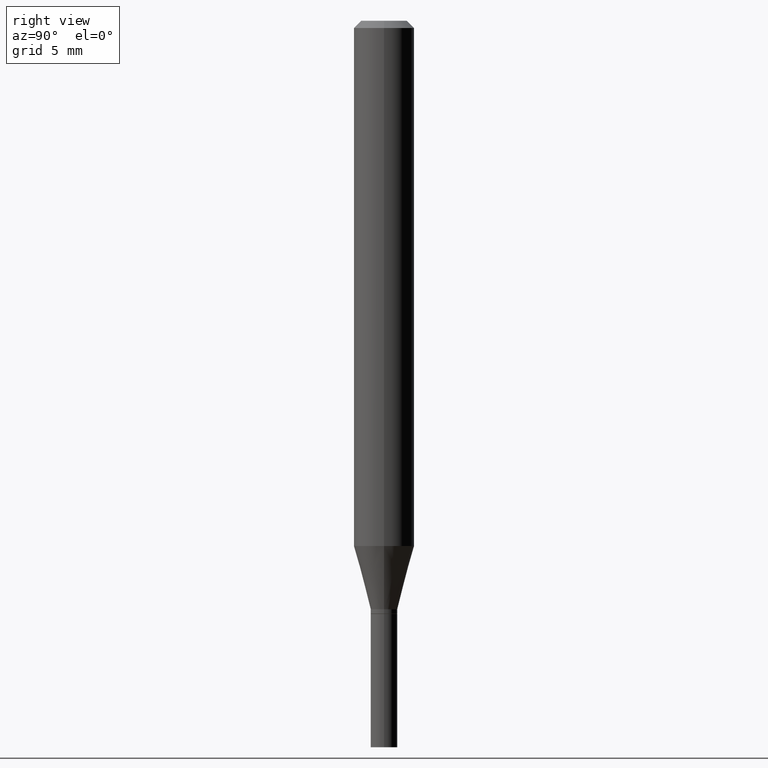
[diagram: clean part render]
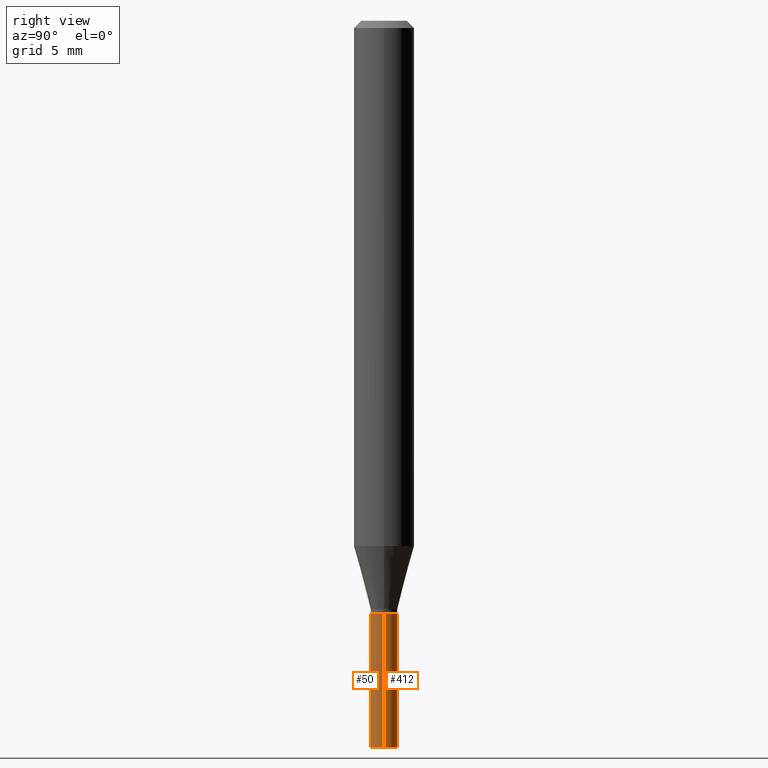
[diagram: same view with one multi-face feature highlighted, each face labeled with its STEP entity id]
A machine part, right view. The highlighted faces form ONE feature: a constant-radius fillet chain: 2 tangent blend faces with common blend radius 0.6985 mm. The faces share edges in the B-rep.
Their STEP definitions:
[1] entity #412 (Cylinder):
#14 = EDGE_LOOP ( 'NONE', ( #34, #220, #256, #105 ) ) ;
#20 = EDGE_CURVE ( 'NONE', #398, #40, #162, .T. ) ;
#24 = CARTESIAN_POINT ( 'NONE',  ( 0.02750000000000000014, -1.920314736363723444E-16, 1.340948613343882413E-30 ) ) ;
#32 = EDGE_CURVE ( 'NONE', #207, #244, #360, .T. ) ;
#34 = ORIENTED_EDGE ( 'NONE', *, *, #32, .T. ) ;
#40 = VERTEX_POINT ( 'NONE', #352 ) ;
#57 = DIRECTION ( 'NONE',  ( -2.445468806185136597E-29, 3.491481338843145583E-15, 1.000000000000000000 ) ) ;
#58 = AXIS2_PLACEMENT_3D ( 'NONE', #235, #310, #200 ) ;
#69 = EDGE_CURVE ( 'NONE', #207, #398, #453, .T. ) ;
#91 = FACE_OUTER_BOUND ( 'NONE', #14, .T. ) ;
#105 = ORIENTED_EDGE ( 'NONE', *, *, #69, .F. ) ;
#135 = VECTOR ( 'NONE', #455, 39.37007874015748143 ) ;
#161 = CARTESIAN_POINT ( 'NONE',  ( -0.02750000000000000014, 1.953992523340275521E-16, -1.352707149820099181E-30 ) ) ;
#162 = CIRCLE ( 'NONE', #353, 0.02750000000000000014 ) ;
#164 = DIRECTION ( 'NONE',  ( -2.445468806185136877E-29, 3.491481338843145188E-15, 1.000000000000000000 ) ) ;
#190 = AXIS2_PLACEMENT_3D ( 'NONE', #384, #57, #293 ) ;
#200 = DIRECTION ( 'NONE',  ( 1.000000000000000000, -6.982962677686279332E-15, 0.000000000000000000 ) ) ;
#207 = VERTEX_POINT ( 'NONE', #303 ) ;
#220 = ORIENTED_EDGE ( 'NONE', *, *, #356, .T. ) ;
#223 = CARTESIAN_POINT ( 'NONE',  ( -0.02750000000000000014, -4.561744071839757644E-15, -1.500000000000000222 ) ) ;
#234 = CYLINDRICAL_SURFACE ( 'NONE', #190, 0.02750000000000000014 ) ;
#235 = CARTESIAN_POINT ( 'NONE',  ( 3.668203209277704895E-29, -5.237222008264718177E-15, -1.500000000000000222 ) ) ;
#237 = CARTESIAN_POINT ( 'NONE',  ( 2.995699287576792443E-29, -4.277064640082853349E-15, -1.225000000000000089 ) ) ;
#244 = VERTEX_POINT ( 'NONE', #223 ) ;
#256 = ORIENTED_EDGE ( 'NONE', *, *, #20, .F. ) ;
#277 = DIRECTION ( 'NONE',  ( 1.000000000000000000, -6.982962677686262766E-15, 0.000000000000000000 ) ) ;
#293 = DIRECTION ( 'NONE',  ( 1.000000000000000000, -6.982962677686266711E-15, 4.876176775795935793E-29 ) ) ;
#303 = CARTESIAN_POINT ( 'NONE',  ( 0.02750000000000000014, -5.429253481901091458E-15, -1.500000000000000222 ) ) ;
#310 = DIRECTION ( 'NONE',  ( -2.445468806185136597E-29, 3.491481338843145583E-15, 1.000000000000000000 ) ) ;
#319 = VECTOR ( 'NONE', #164, 39.37007874015748143 ) ;
#352 = CARTESIAN_POINT ( 'NONE',  ( -0.02750000000000000014, -4.561744071839757644E-15, -1.225000000000000089 ) ) ;
#353 = AXIS2_PLACEMENT_3D ( 'NONE', #237, #456, #277 ) ;
#356 = EDGE_CURVE ( 'NONE', #244, #40, #421, .T. ) ;
#360 = CIRCLE ( 'NONE', #58, 0.02750000000000000014 ) ;
#384 = CARTESIAN_POINT ( 'NONE',  ( 0.000000000000000000, 0.000000000000000000, 0.000000000000000000 ) ) ;
#398 = VERTEX_POINT ( 'NONE', #419 ) ;
#412 = ADVANCED_FACE ( 'NONE', ( #91 ), #234, .T. ) ;
#419 = CARTESIAN_POINT ( 'NONE',  ( 0.02750000000000000014, -4.469096113719225841E-15, -1.225000000000000089 ) ) ;
#421 = LINE ( 'NONE', #161, #135 ) ;
#453 = LINE ( 'NONE', #24, #319 ) ;
#455 = DIRECTION ( 'NONE',  ( -2.445468806185136877E-29, 3.491481338843145188E-15, 1.000000000000000000 ) ) ;
#456 = DIRECTION ( 'NONE',  ( -2.445468806185136597E-29, 3.491481338843145583E-15, 1.000000000000000000 ) ) ;
[2] entity #50 (Cylinder):
#6 = ORIENTED_EDGE ( 'NONE', *, *, #69, .T. ) ;
#12 = ORIENTED_EDGE ( 'NONE', *, *, #363, .F. ) ;
#24 = CARTESIAN_POINT ( 'NONE',  ( 0.02750000000000000014, -1.920314736363723444E-16, 1.340948613343882413E-30 ) ) ;
#29 = CARTESIAN_POINT ( 'NONE',  ( 0.000000000000000000, 0.000000000000000000, 0.000000000000000000 ) ) ;
#40 = VERTEX_POINT ( 'NONE', #352 ) ;
#50 = ADVANCED_FACE ( 'NONE', ( #134 ), #312, .T. ) ;
#51 = DIRECTION ( 'NONE',  ( 1.000000000000000000, -6.982962677686279332E-15, 0.000000000000000000 ) ) ;
#55 = DIRECTION ( 'NONE',  ( -2.445468806185136597E-29, 3.491481338843145583E-15, 1.000000000000000000 ) ) ;
#69 = EDGE_CURVE ( 'NONE', #207, #398, #453, .T. ) ;
#97 = DIRECTION ( 'NONE',  ( 1.000000000000000000, -6.982962677686266711E-15, 4.876176775795935793E-29 ) ) ;
#116 = ORIENTED_EDGE ( 'NONE', *, *, #356, .F. ) ;
#134 = FACE_OUTER_BOUND ( 'NONE', #394, .T. ) ;
#135 = VECTOR ( 'NONE', #455, 39.37007874015748143 ) ;
#146 = ORIENTED_EDGE ( 'NONE', *, *, #396, .T. ) ;
#161 = CARTESIAN_POINT ( 'NONE',  ( -0.02750000000000000014, 1.953992523340275521E-16, -1.352707149820099181E-30 ) ) ;
#164 = DIRECTION ( 'NONE',  ( -2.445468806185136877E-29, 3.491481338843145188E-15, 1.000000000000000000 ) ) ;
#202 = CARTESIAN_POINT ( 'NONE',  ( 3.668203209277704895E-29, -5.237222008264718177E-15, -1.500000000000000222 ) ) ;
#207 = VERTEX_POINT ( 'NONE', #303 ) ;
#223 = CARTESIAN_POINT ( 'NONE',  ( -0.02750000000000000014, -4.561744071839757644E-15, -1.500000000000000222 ) ) ;
#232 = DIRECTION ( 'NONE',  ( 1.000000000000000000, -6.982962677686262766E-15, 0.000000000000000000 ) ) ;
#244 = VERTEX_POINT ( 'NONE', #223 ) ;
#269 = CARTESIAN_POINT ( 'NONE',  ( 2.995699287576792443E-29, -4.277064640082853349E-15, -1.225000000000000089 ) ) ;
#276 = DIRECTION ( 'NONE',  ( -2.445468806185136597E-29, 3.491481338843145583E-15, 1.000000000000000000 ) ) ;
#280 = DIRECTION ( 'NONE',  ( -2.445468806185136597E-29, 3.491481338843145583E-15, 1.000000000000000000 ) ) ;
#300 = CIRCLE ( 'NONE', #346, 0.02750000000000000014 ) ;
#303 = CARTESIAN_POINT ( 'NONE',  ( 0.02750000000000000014, -5.429253481901091458E-15, -1.500000000000000222 ) ) ;
#307 = AXIS2_PLACEMENT_3D ( 'NONE', #29, #55, #97 ) ;
#308 = AXIS2_PLACEMENT_3D ( 'NONE', #202, #276, #51 ) ;
#312 = CYLINDRICAL_SURFACE ( 'NONE', #307, 0.02750000000000000014 ) ;
#319 = VECTOR ( 'NONE', #164, 39.37007874015748143 ) ;
#340 = CIRCLE ( 'NONE', #308, 0.02750000000000000014 ) ;
#346 = AXIS2_PLACEMENT_3D ( 'NONE', #269, #280, #232 ) ;
#352 = CARTESIAN_POINT ( 'NONE',  ( -0.02750000000000000014, -4.561744071839757644E-15, -1.225000000000000089 ) ) ;
#356 = EDGE_CURVE ( 'NONE', #244, #40, #421, .T. ) ;
#363 = EDGE_CURVE ( 'NONE', #40, #398, #300, .T. ) ;
#394 = EDGE_LOOP ( 'NONE', ( #116, #146, #6, #12 ) ) ;
#396 = EDGE_CURVE ( 'NONE', #244, #207, #340, .T. ) ;
#398 = VERTEX_POINT ( 'NONE', #419 ) ;
#419 = CARTESIAN_POINT ( 'NONE',  ( 0.02750000000000000014, -4.469096113719225841E-15, -1.225000000000000089 ) ) ;
#421 = LINE ( 'NONE', #161, #135 ) ;
#453 = LINE ( 'NONE', #24, #319 ) ;
#455 = DIRECTION ( 'NONE',  ( -2.445468806185136877E-29, 3.491481338843145188E-15, 1.000000000000000000 ) ) ;